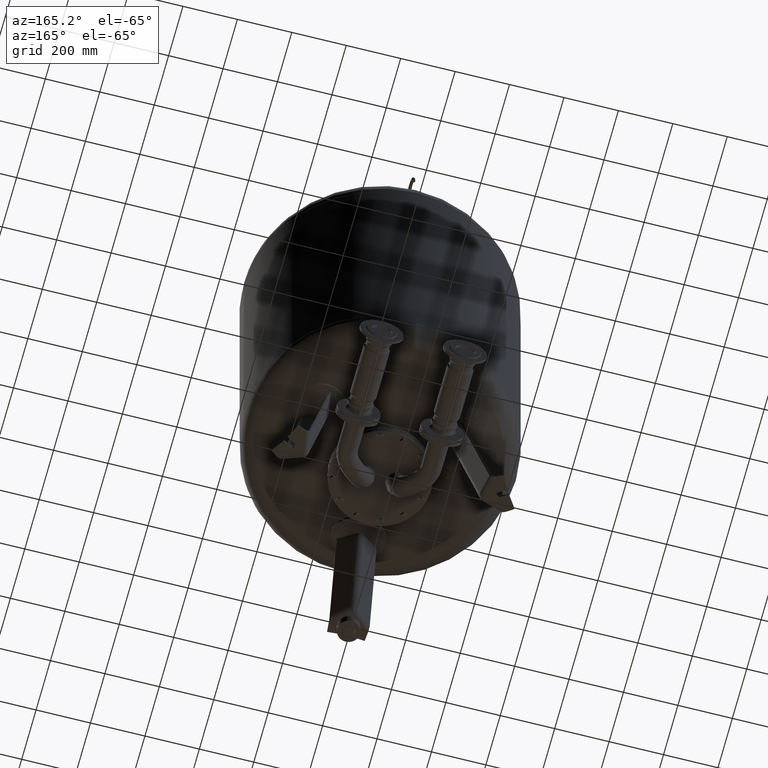
[diagram: clean part render]
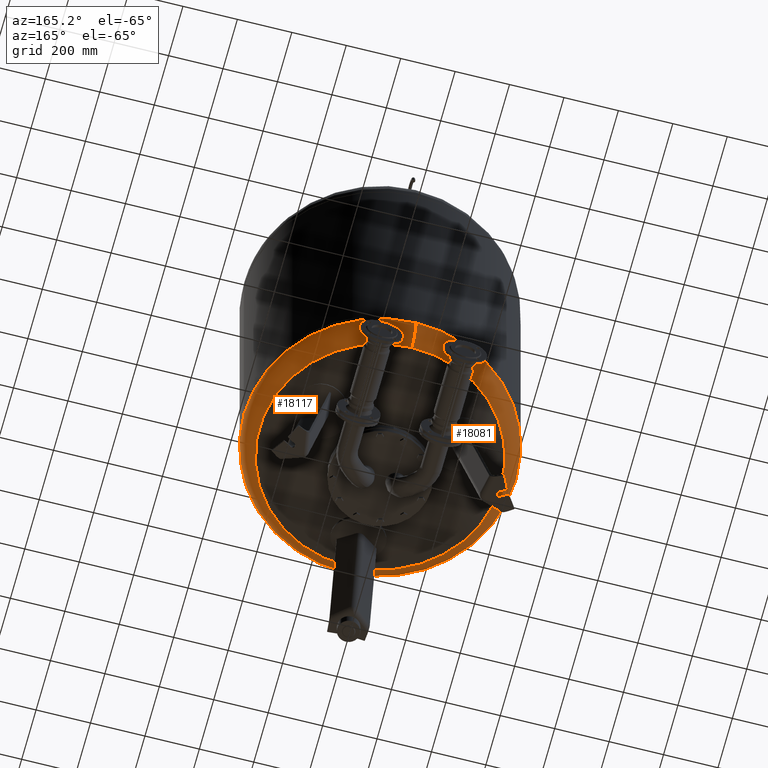
[diagram: same view with one multi-face feature highlighted, each face labeled with its STEP entity id]
A machine part, auxiliary view. The highlighted faces form ONE feature: a constant-radius fillet chain: 2 tangent blend faces with common blend radius 100.6 mm. The faces share edges in the B-rep.
Their STEP definitions:
[1] entity #18117 (Torus):
#18003=CARTESIAN_POINT('',(500.0,2.569315E-014,653.455355072719500));
#18004=VERTEX_POINT('',#18003);
#18011=CARTESIAN_POINT('',(-6.123032E-014,499.999999999999940,653.455355072719610));
#18012=VERTEX_POINT('',#18011);
#18013=CARTESIAN_POINT('',(-2.595210E-014,-3.553717E-014,653.455355072719500));
#18014=DIRECTION('',(0.0,0.0,1.0));
#18015=DIRECTION('',(-1.0,0.0,0.0));
#18016=AXIS2_PLACEMENT_3D('',#18013,#18014,#18015);
#18017=CIRCLE('',#18016,500.0);
#18018=EDGE_CURVE('',#18004,#18012,#18017,.T.);
#18035=CARTESIAN_POINT('',(3.381269E-030,-500.000000000000060,653.455355072719390));
#18036=VERTEX_POINT('',#18035);
#18037=CARTESIAN_POINT('',(1.211146E-014,-443.777777777777600,563.172616747466120));
#18038=VERTEX_POINT('',#18037);
#18039=CARTESIAN_POINT('',(0.0,-399.399999999999980,653.455355072719500));
#18040=DIRECTION('',(1.0,0.0,0.0));
#18041=DIRECTION('',(0.0,-1.0,0.0));
#18042=AXIS2_PLACEMENT_3D('',#18039,#18040,#18041);
#18043=CIRCLE('',#18042,100.600000000000010);
#18044=EDGE_CURVE('',#18036,#18038,#18043,.T.);
#18054=CARTESIAN_POINT('',(-4.223385E-014,443.777777777777600,563.172616747466350));
#18055=VERTEX_POINT('',#18054);
#18056=CARTESIAN_POINT('',(-4.891078E-014,399.399999999999860,653.455355072719730));
#18057=DIRECTION('',(-1.0,0.0,0.0));
#18058=DIRECTION('',(0.0,1.0,0.0));
#18059=AXIS2_PLACEMENT_3D('',#18056,#18057,#18058);
#18060=CIRCLE('',#18059,100.600000000000010);
#18061=EDGE_CURVE('',#18012,#18055,#18060,.T.);
#18089=CARTESIAN_POINT('',(-1.384064E-014,-1.895250E-014,563.172616747466240));
#18090=DIRECTION('',(0.0,0.0,1.0));
#18091=DIRECTION('',(-1.0,0.0,0.0));
#18092=AXIS2_PLACEMENT_3D('',#18089,#18090,#18091);
#18093=CIRCLE('',#18092,443.777777777777600);
#18094=EDGE_CURVE('',#18038,#18055,#18093,.T.);
#18099=CARTESIAN_POINT('',(0.0,-3.553717E-014,653.455355072719610));
#18100=DIRECTION('',(-1.341503E-016,-1.836970E-016,1.0));
#18101=DIRECTION('',(0.0,-1.0,0.0));
#18102=AXIS2_PLACEMENT_3D('',#18099,#18100,#18101);
#18103=TOROIDAL_SURFACE('',#18102,399.399999999999920,100.600000000000010);
#18104=ORIENTED_EDGE('',*,*,#18044,.T.);
#18105=ORIENTED_EDGE('',*,*,#18094,.T.);
#18106=ORIENTED_EDGE('',*,*,#18061,.F.);
#18107=ORIENTED_EDGE('',*,*,#18018,.F.);
#18108=CARTESIAN_POINT('',(-2.595210E-014,-3.553717E-014,653.455355072719500));
#18109=DIRECTION('',(0.0,0.0,1.0));
#18110=DIRECTION('',(-1.0,0.0,0.0));
#18111=AXIS2_PLACEMENT_3D('',#18108,#18109,#18110);
#18112=CIRCLE('',#18111,500.0);
#18113=EDGE_CURVE('',#18036,#18004,#18112,.T.);
#18114=ORIENTED_EDGE('',*,*,#18113,.F.);
#18115=EDGE_LOOP('',(#18104,#18105,#18106,#18107,#18114));
#18116=FACE_OUTER_BOUND('',#18115,.T.);
#18117=ADVANCED_FACE('',(#18116),#18103,.T.);
[2] entity #18081 (Torus):
#17986=CARTESIAN_POINT('',(-500.0,-3.553717E-014,653.455355072719390));
#17987=VERTEX_POINT('',#17986);
#18011=CARTESIAN_POINT('',(-6.123032E-014,499.999999999999940,653.455355072719610));
#18012=VERTEX_POINT('',#18011);
#18020=CARTESIAN_POINT('',(-2.595210E-014,-3.553717E-014,653.455355072719500));
#18021=DIRECTION('',(0.0,0.0,1.0));
#18022=DIRECTION('',(-1.0,0.0,0.0));
#18023=AXIS2_PLACEMENT_3D('',#18020,#18021,#18022);
#18024=CIRCLE('',#18023,500.0);
#18025=EDGE_CURVE('',#18012,#17987,#18024,.T.);
#18030=CARTESIAN_POINT('',(0.0,-3.553717E-014,653.455355072719610));
#18031=DIRECTION('',(-1.341503E-016,-1.836970E-016,1.0));
#18032=DIRECTION('',(0.0,-1.0,0.0));
#18033=AXIS2_PLACEMENT_3D('',#18030,#18031,#18032);
#18034=TOROIDAL_SURFACE('',#18033,399.399999999999920,100.600000000000010);
#18035=CARTESIAN_POINT('',(3.381269E-030,-500.000000000000060,653.455355072719390));
#18036=VERTEX_POINT('',#18035);
#18037=CARTESIAN_POINT('',(1.211146E-014,-443.777777777777600,563.172616747466120));
#18038=VERTEX_POINT('',#18037);
#18039=CARTESIAN_POINT('',(0.0,-399.399999999999980,653.455355072719500));
#18040=DIRECTION('',(1.0,0.0,0.0));
#18041=DIRECTION('',(0.0,-1.0,0.0));
#18042=AXIS2_PLACEMENT_3D('',#18039,#18040,#18041);
#18043=CIRCLE('',#18042,100.600000000000010);
#18044=EDGE_CURVE('',#18036,#18038,#18043,.T.);
#18045=ORIENTED_EDGE('',*,*,#18044,.F.);
#18046=CARTESIAN_POINT('',(-2.595210E-014,-3.553717E-014,653.455355072719500));
#18047=DIRECTION('',(0.0,0.0,1.0));
#18048=DIRECTION('',(-1.0,0.0,0.0));
#18049=AXIS2_PLACEMENT_3D('',#18046,#18047,#18048);
#18050=CIRCLE('',#18049,500.0);
#18051=EDGE_CURVE('',#17987,#18036,#18050,.T.);
#18052=ORIENTED_EDGE('',*,*,#18051,.F.);
#18053=ORIENTED_EDGE('',*,*,#18025,.F.);
#18054=CARTESIAN_POINT('',(-4.223385E-014,443.777777777777600,563.172616747466350));
#18055=VERTEX_POINT('',#18054);
#18056=CARTESIAN_POINT('',(-4.891078E-014,399.399999999999860,653.455355072719730));
#18057=DIRECTION('',(-1.0,0.0,0.0));
#18058=DIRECTION('',(0.0,1.0,0.0));
#18059=AXIS2_PLACEMENT_3D('',#18056,#18057,#18058);
#18060=CIRCLE('',#18059,100.600000000000010);
#18061=EDGE_CURVE('',#18012,#18055,#18060,.T.);
#18062=ORIENTED_EDGE('',*,*,#18061,.T.);
#18063=CARTESIAN_POINT('',(-443.777777777777600,-1.895250E-014,563.172616747466240));
#18064=VERTEX_POINT('',#18063);
#18065=CARTESIAN_POINT('',(-1.384064E-014,-1.895250E-014,563.172616747466240));
#18066=DIRECTION('',(0.0,0.0,1.0));
#18067=DIRECTION('',(-1.0,0.0,0.0));
#18068=AXIS2_PLACEMENT_3D('',#18065,#18066,#18067);
#18069=CIRCLE('',#18068,443.777777777777600);
#18070=EDGE_CURVE('',#18055,#18064,#18069,.T.);
#18071=ORIENTED_EDGE('',*,*,#18070,.T.);
#18072=CARTESIAN_POINT('',(-1.384064E-014,-1.895250E-014,563.172616747466240));
#18073=DIRECTION('',(0.0,0.0,1.0));
#18074=DIRECTION('',(-1.0,0.0,0.0));
#18075=AXIS2_PLACEMENT_3D('',#18072,#18073,#18074);
#18076=CIRCLE('',#18075,443.777777777777600);
#18077=EDGE_CURVE('',#18064,#18038,#18076,.T.);
#18078=ORIENTED_EDGE('',*,*,#18077,.T.);
#18079=EDGE_LOOP('',(#18045,#18052,#18053,#18062,#18071,#18078));
#18080=FACE_OUTER_BOUND('',#18079,.T.);
#18081=ADVANCED_FACE('',(#18080),#18034,.T.);